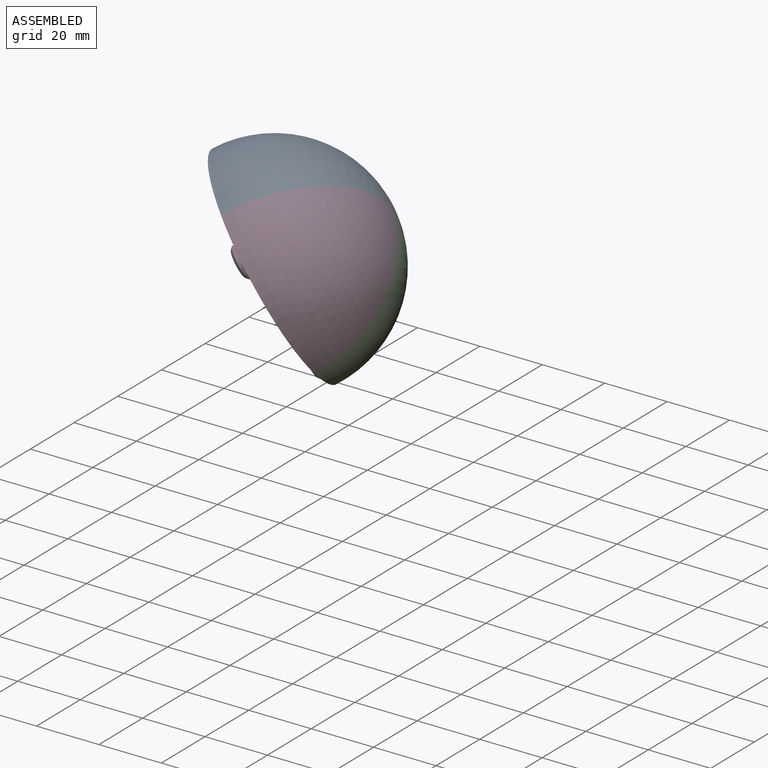
[diagram: assembled view]
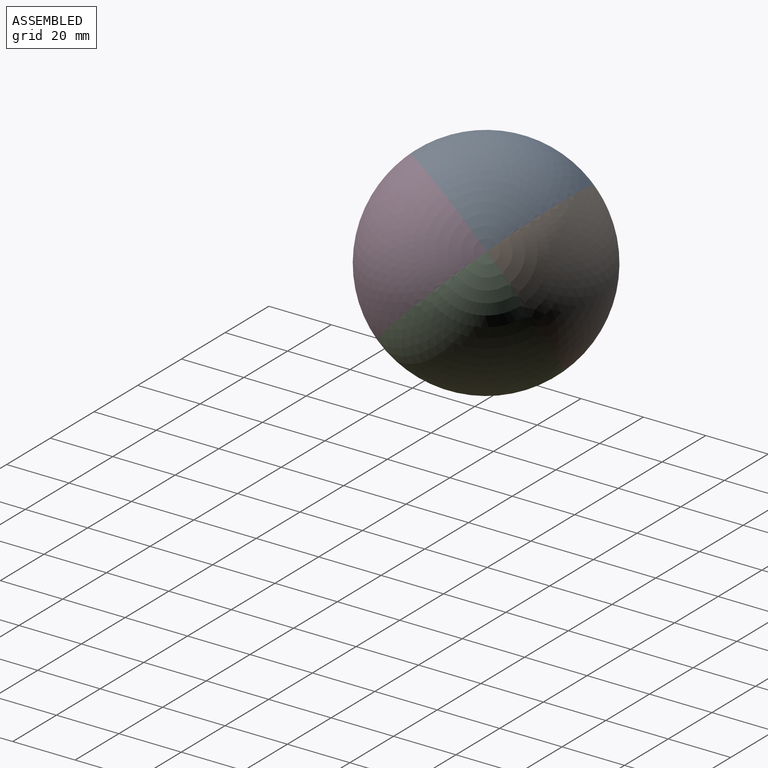
[diagram: assembled view, second angle]
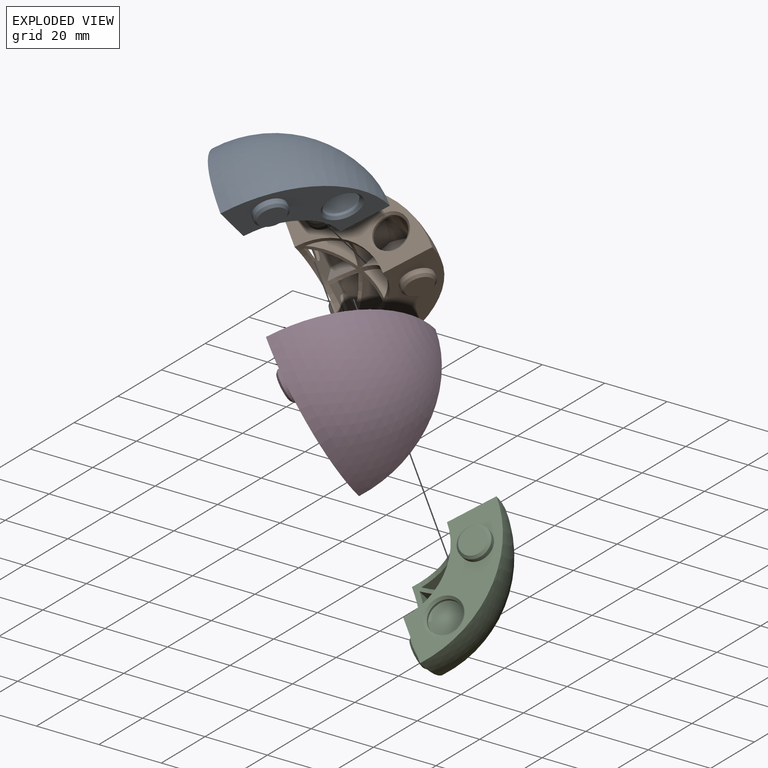
[diagram: exploded view]
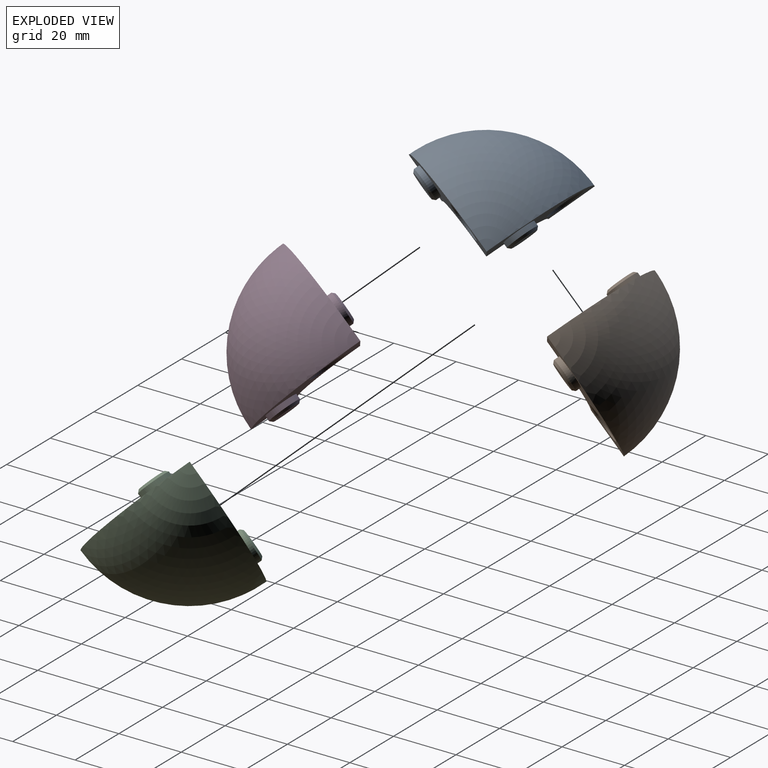
[diagram: exploded view, second angle]
ASSEMBLY  parts=4 mates=3
PART A: 50 faces, bbox 37.4x37.4x37.4 mm
  f0: plane 16.82x11.64mm, normal (0.71,0.71,0), area 184.8mm2, adj f3,f16,f31,f32
  f1: plane 20.9x16.82mm, normal (0.71,0,0.71), area 289.4mm2, adj f3,f17,f29,f30
  f2: plane 16.82x11.64mm, normal (0,-0.71,0.71), area 184.8mm2, adj f3,f18,f23,f24
  f3: sphere r=20mm, area 237.4mm2, adj f0,f1,f2,f5,f7,f8,f9,f10
  f4: sphere r=35mm, area 1924.2mm2, adj f5,f10,f14
  f5: plane 35x35mm, normal (0,-1,0), area 458.2mm2, adj f3,f4,f10,f14,f39,f49
  f6: sphere r=33.4mm, area 223mm2, adj f7,f8,f9
  f7: plane 20.71x18.76mm, normal (0,1,0), area 161.5mm2, adj f3,f6,f8,f9,f38
  f8: plane 16.82x11.64mm, normal (-0.71,0,-0.71), area 184.8mm2, adj f3,f6,f7,f9
  f9: plane 20.9x16.82mm, normal (0,-0.71,0.71), area 289.4mm2, adj f3,f6,f7,f8
  f10: plane 35x35mm, normal (0,0,-1), area 458.2mm2, adj f3,f4,f5,f14,f35,f44
  f11: plane 20.71x18.76mm, normal (0,0,1), area 155.1mm2, adj f3,f12,f13,f15,f43
  f12: sphere r=33.4mm, area 223mm2, adj f11,f13,f15
  f13: plane 16.82x11.64mm, normal (-0.71,-0.71,0), area 184.8mm2, adj f3,f11,f12,f15
  f14: plane 35x35mm, normal (1,0,0), area 458.2mm2, adj f3,f4,f5,f10,f27,f46
  f15: plane 20.9x16.82mm, normal (0,0.71,-0.71), area 289.4mm2, adj f3,f11,f12,f13
  f16: plane 20.9x16.82mm, normal (-0.71,0,-0.71), area 289.4mm2, adj f0,f3,f31,f32
  f17: plane 16.82x11.64mm, normal (0,0.71,-0.71), area 184.8mm2, adj f1,f3,f29,f30
  f18: plane 20.9x16.82mm, normal (0.71,0.71,0), area 289.4mm2, adj f2,f3,f23,f24
  f19: plane 20.9x16.82mm, normal (-0.71,-0.71,0), area 289.4mm2, adj f3,f20,f21,f22
  f20: plane 16.82x11.64mm, normal (0.71,0,0.71), area 184.8mm2, adj f3,f19,f21,f22
  f21: plane 20.71x18.76mm, normal (0,1,0), area 155.1mm2, adj f3,f19,f20,f22,f42
  f22: sphere r=33.4mm, area 223mm2, adj f19,f20,f21
  f23: plane 20.71x18.76mm, normal (-1,0,0), area 161.5mm2, adj f2,f3,f18,f24,f26
  f24: sphere r=33.4mm, area 223mm2, adj f2,f18,f23
  f25: plane 10x10mm, normal (-1,0,0), area 78.5mm2, adj f26
  f26: cylinder r=5mm len=10mm, axis (-1,0,0), area 25.1mm2, adj f23,f25
  f27: cylinder r=5mm len=10mm, axis (-1,0,0), area 51.8mm2, adj f14,f47
  f28: plane 8.5x8.5mm, normal (1,0,0), area 56.7mm2, adj f47
  f29: plane 20.71x18.76mm, normal (-1,0,0), area 155.1mm2, adj f1,f3,f17,f30,f41
  f30: sphere r=33.4mm, area 223mm2, adj f1,f17,f29
  f31: plane 20.71x18.76mm, normal (0,0,1), area 161.5mm2, adj f0,f3,f16,f32,f34
  f32: sphere r=33.4mm, area 223mm2, adj f0,f16,f31
  f33: plane 10x10mm, normal (0,0,1), area 78.5mm2, adj f34
  f34: cylinder r=5mm len=10mm, axis (0,0,1), area 25.1mm2, adj f31,f33
  f35: cylinder r=5mm len=10mm, axis (0,0,1), area 51.8mm2, adj f10,f45
  f36: plane 8.5x8.5mm, normal (0,0,-1), area 56.7mm2, adj f45
  f37: plane 10x10mm, normal (0,1,0), area 78.5mm2, adj f38
  f38: cylinder r=5mm len=10mm, axis (0,1,0), area 25.1mm2, adj f7,f37
  f39: cylinder r=5mm len=10mm, axis (0,1,0), area 51.8mm2, adj f5,f48
  f40: plane 8.5x8.5mm, normal (0,-1,0), area 56.7mm2, adj f48
  f41: cylinder r=5.2mm len=10.4mm, axis (1,0,0), area 27.8mm2, adj f29,f46
  f42: cylinder r=5.2mm len=10.4mm, axis (0,-1,0), area 27.8mm2, adj f21,f49
  f43: cylinder r=5.2mm len=10.4mm, axis (0,0,-1), area 27.8mm2, adj f11,f44
  f44: cone r=5.2mm half-angle=45deg, axis (0,0,-1), area 37.2mm2, adj f10,f43
  f45: cone r=5mm half-angle=45deg, axis (0,0,1), area 30.8mm2, adj f35,f36
  f46: cone r=5.2mm half-angle=45deg, axis (1,0,0), area 37.2mm2, adj f14,f41
  f47: cone r=5mm half-angle=45deg, axis (-1,0,0), area 30.8mm2, adj f27,f28
  f48: cone r=4.25mm half-angle=45deg, axis (0,1,0), area 30.8mm2, adj f39,f40
  f49: cone r=5.2mm half-angle=45deg, axis (0,-1,0), area 37.2mm2, adj f5,f42
PART B: same geometry as A
PART C: same geometry as A
PART D: same geometry as A
PLACE A rot(axis=(0,0.71,0.71),90deg) t=(-54.44,-10.47,-2.61)mm
PLACE B rot(axis=(-0.68,0.68,-0.28),62.8deg) t=(-54.44,-10.47,-2.61)mm
PLACE C rot(axis=(-0.58,0,-0.82),120deg) t=(-54.44,-10.47,-2.61)mm
PLACE D rot(axis=(0.36,0.36,0.86),163.2deg) t=(-54.44,-10.47,-2.61)mm
MATE fastened A.f26 <-> B.f42  axis (0,0.71,-0.71) through (-43.82,7.47,15.33)mm
MATE fastened D.f26 <-> A.f42  axis (-0.71,0.5,0.5) through (-36.45,-5.11,17.49)mm
MATE fastened C.f38 <-> B.f46  axis (-0.71,0.5,0.5) through (-47.07,12.74,-15.39)mm
